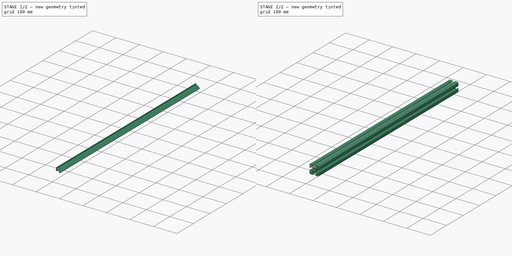
[diagram: build sequence overview — one tinted view per stage of 2, left to right]
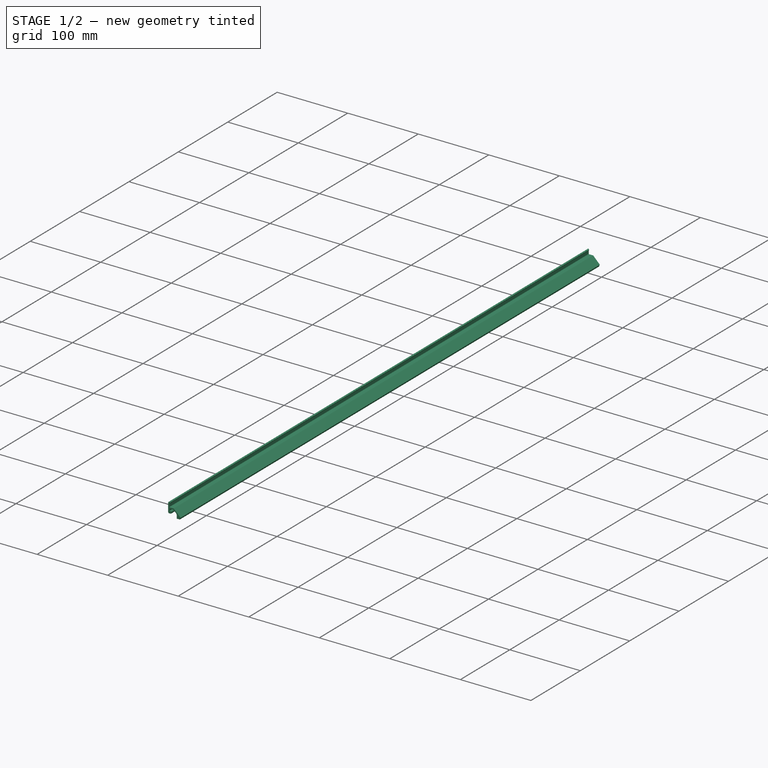
[diagram: stage 1 of 2 — iso view after this stage's code; geometry added in this stage tinted green]
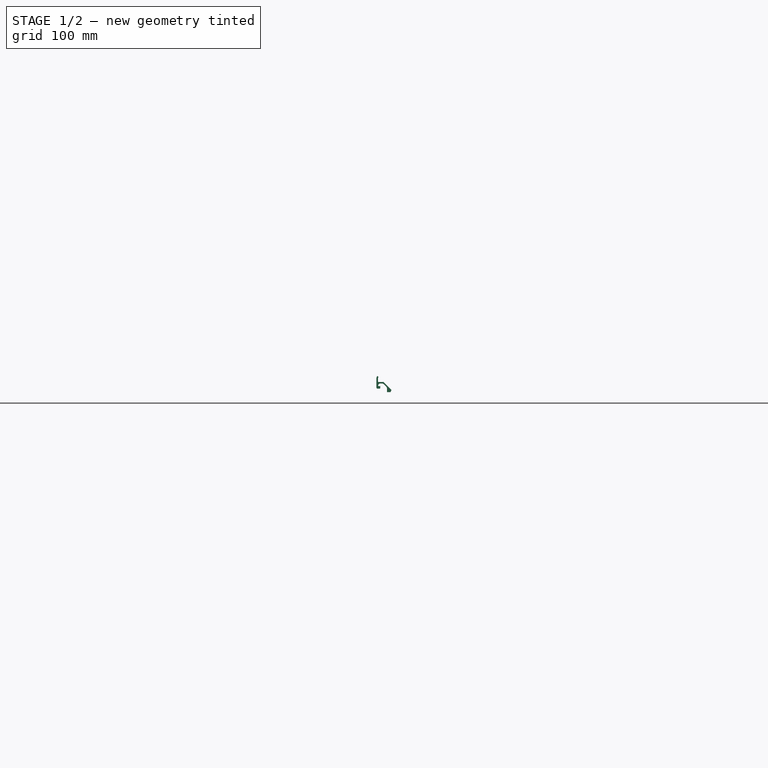
[diagram: stage 1 of 2 — front view after this stage's code; geometry added in this stage tinted green]
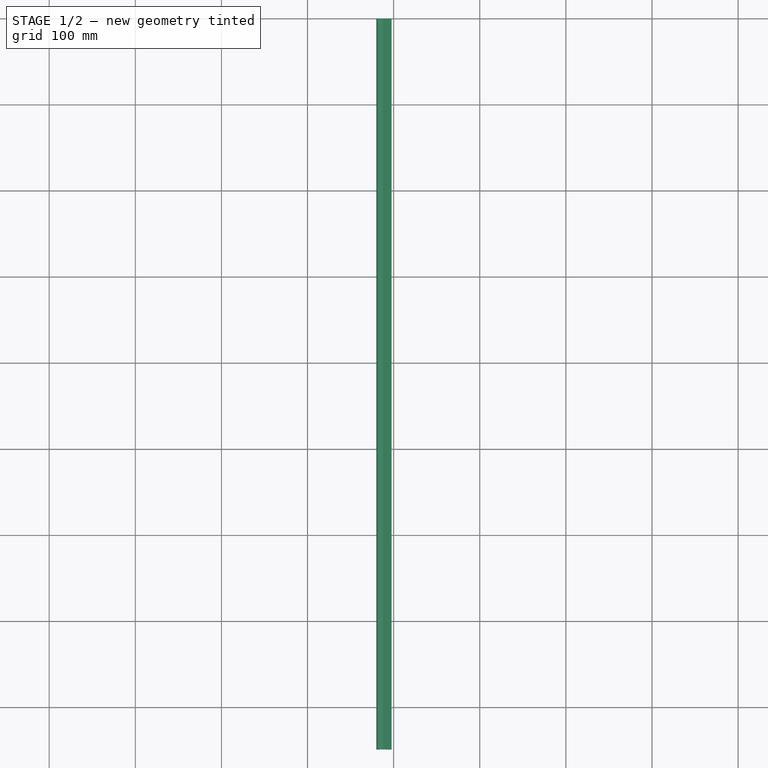
[diagram: stage 1 of 2 — top view after this stage's code; geometry added in this stage tinted green]
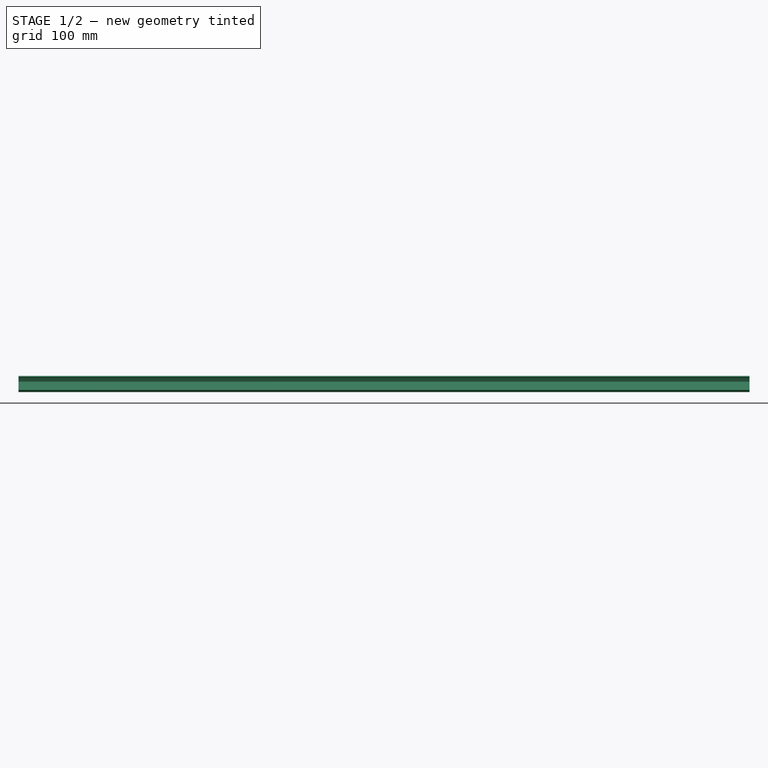
[diagram: stage 1 of 2 — right view after this stage's code; geometry added in this stage tinted green]
FCSTD DOCUMENT  (FreeCAD 0.21R33668 +7 (Git))
Label: 40-4040-849
License: All rights reserved
LicenseURL: http://en.wikipedia.org/wiki/All_rights_reserved
objects: Sketcher::SketchObject×1, PartDesign::Pad×1, PartDesign::Mirrored×1, PartDesign::PolarPattern×1, PartDesign::MultiTransform×1, PartDesign::Body×1, App::Part×1
note: 7 computed .brp shape members not serialized (recipe doc carries the construction recipe); baked Part::Feature solids carry a one-line shape summary decoded from their .brp

FEATURE [Sketcher::SketchObject] Sketch010  label="4040L Profile Sketch"
  FullyConstrained = true
  MapMode = 5
  Placement = pos=(0,0,0) rot=(1,0,0;1.5708rad)
  Support = -> [XZ_Plane001]
  sketch-geometry (26):
    g0: LineSegment StartX=-2.40416 StartY=2.40416 StartZ=0 EndX=-11.9464 EndY=11.9464 EndZ=0
    g1: LineSegment StartX=-20 StartY=16 StartZ=0 EndX=-20 EndY=5.5 EndZ=0
    g2: LineSegment StartX=-18.5 StartY=4 StartZ=0 EndX=-16.35 EndY=4 EndZ=0
    g3: LineSegment StartX=-15.55 StartY=4.8 StartZ=0 EndX=-15.55 EndY=6.5 EndZ=0
    g4: LineSegment StartX=-16.05 StartY=7 StartZ=0 EndX=-17.4008 EndY=7 EndZ=0
    g5: LineSegment StartX=-10.9216 StartY=8.82843 StartZ=0 EndX=-8.92157 EndY=6.82843 EndZ=0
    g6: LineSegment StartX=-7.75 StartY=4 StartZ=0 EndX=-7.75 EndY=0 EndZ=0
    g7: LineSegment StartX=-7.75 StartY=0 StartZ=0 EndX=-3.4 EndY=0 EndZ=0
    g8: ArcOfCircle CenterX=4e-16 CenterY=-6e-16 CenterZ=0 NormalX=0 NormalY=0 NormalZ=1 AngleXU=0 Radius=3.4 StartAngle=2.35619 EndAngle=3.14159
    g9: LineSegment StartX=-20 StartY=0 StartZ=0 EndX=-20 EndY=20 EndZ=0
    g10: LineSegment StartX=-20 StartY=20 StartZ=0 EndX=0 EndY=20 EndZ=0
    g11: ArcOfCircle CenterX=-16 CenterY=16 CenterZ=0 NormalX=0 NormalY=0 NormalZ=1 AngleXU=0 Radius=4 StartAngle=2.35619 EndAngle=3.14159
    g12: ArcOfCircle CenterX=-16.05 CenterY=6.5 CenterZ=0 NormalX=0 NormalY=0 NormalZ=1 AngleXU=0 Radius=0.5 StartAngle=0 EndAngle=1.5708
    g13: ArcOfCircle CenterX=-16.35 CenterY=4.8 CenterZ=0 NormalX=0 NormalY=0 NormalZ=1 AngleXU=0 Radius=0.8 StartAngle=4.71239 EndAngle=6.28319
    g14: ArcOfCircle CenterX=-13.75 CenterY=6 CenterZ=0 NormalX=0 NormalY=0 NormalZ=1 AngleXU=0 Radius=4 StartAngle=0.785398 EndAngle=1.5708
    g15: ArcOfCircle CenterX=-11.75 CenterY=4 CenterZ=0 NormalX=0 NormalY=0 NormalZ=1 AngleXU=0 Radius=4 StartAngle=2e-16 EndAngle=0.785398
    g16: LineSegment StartX=-15.5035 StartY=10 StartZ=0 EndX=-13.75 EndY=10 EndZ=0
    g17: ArcOfCircle CenterX=-17.4008 CenterY=7.6 CenterZ=0 NormalX=0 NormalY=0 NormalZ=1 AngleXU=0 Radius=0.6 StartAngle=3.08894 EndAngle=4.71239
    g18: ArcOfCircle CenterX=-15.5035 CenterY=7.5 CenterZ=0 NormalX=0 NormalY=0 NormalZ=1 AngleXU=0 Radius=2.5 StartAngle=1.5708 EndAngle=3.08894
    g19: ArcOfCircle CenterX=-16 CenterY=16 CenterZ=0 NormalX=0 NormalY=0 NormalZ=1 AngleXU=0 Radius=2.2 StartAngle=2.35619 EndAngle=3.14159
    g20: LineSegment StartX=-18.2 StartY=16 StartZ=0 EndX=-18.2 EndY=12.3 EndZ=0
    g21: LineSegment StartX=-17.7 StartY=11.8 StartZ=0 EndX=-12.3 EndY=11.8 EndZ=0
    g22: ArcOfCircle CenterX=-17.7 CenterY=12.3 CenterZ=0 NormalX=0 NormalY=0 NormalZ=1 AngleXU=0 Radius=0.5 StartAngle=3.14159 EndAngle=4.71239
    g23: ArcOfCircle CenterX=-12.3 CenterY=12.3 CenterZ=0 NormalX=0 NormalY=0 NormalZ=1 AngleXU=0 Radius=0.5 StartAngle=4.71239 EndAngle=5.49779
    g24: ArcOfCircle CenterX=-18.5 CenterY=5.5 CenterZ=0 NormalX=0 NormalY=0 NormalZ=1 AngleXU=0 Radius=1.5 StartAngle=3.14159 EndAngle=4.71239
    g25: LineSegment StartX=-17.5556 StartY=17.5556 StartZ=0 EndX=-18.8284 EndY=18.8284 EndZ=0
  constraints (69):
    c: Vertical(g1)
    c: Horizontal(g2)
    c: Vertical(g3)
    c: Vertical(g6)
    c: Coincident(g6,g7)
    c: Horizontal(g7)
    c: Perpendicular(g7,g8) = 4.71239
    c: Coincident(g8,g0)
    c: PointOnObject(g9,g-1)
    c: Vertical(g9)
    c: Coincident(g9,g10)
    c: PointOnObject(g10,g-2)
    c: Horizontal(g10)
    c: Equal(g10,g9)
    c: DistanceX(g10,g10) = 20
    c: PointOnObject(g1,g9)
    c: Angle(g-2,g0) = 0.785398
    c: Coincident(g11,g1)
    c: Coincident(g11,g25)
    c: Tangent(g11,g9)
    c: PointOnObject(g6,g-1)
    c: PointOnObject(g-1,g0)
    c: Tangent(g4,g12) = -1.5708
    c: Tangent(g3,g12) = -1.5708
    c: Tangent(g3,g13) = -1.5708
    c: Tangent(g2,g13) = -1.5708
    c: Horizontal(g4)
    c: Tangent(g5,g14) = 1.5708
    c: Tangent(g5,g15) = 1.5708
    c: Tangent(g15,g6) = 1.5708
    c: Horizontal(g16)
    c: Tangent(g14,g16) = 1.5708
    c: Tangent(g4,g17) = 1.5708
    c: Tangent(g16,g18) = 1.5708
    c: Tangent(g18,g17) = -1.5708
    c: Perpendicular(g8,g0)
    c: Diameter(g8) = 6.8
    c: Vertical(g20)
    c: Horizontal(g21)
    c: Tangent(g21,g22) = -1.5708
    c: Tangent(g20,g22) = -1.5708
    c: Tangent(g23,g21) = -1.5708
    c: Tangent(g2,g24) = -1.5708
    c: Tangent(g1,g24) = -1.5708
    c: Parallel(g5,g0)
    c: DistanceY(g-1,g2) = 4
    c: Perpendicular(g0,g23) = 4.71239
    c: Perpendicular(g25,g19) = 1.5708
    c: Tangent(g0,g25)
    c: Tangent(g19,g20) = -1.5708
    c: Radius(g11) = 4
    c: Coincident(g11,g19)
    c: Equal(g23,g22)
    c: DistanceX(g1,g6) = 12.25
    c: DistanceX(g1,g3) = 4.45
    c: Distance(g25) = 1.8
    c: DistanceY(g14,g21) = 1.8
    c: Radius(g24) = 1.5
    c: Radius(g13) = 0.8
    c: Radius(g12) = 0.5
    c: Radius(g18) = 2.5
    c: Radius(g17) = 0.6
    c: Radius(g15) = 4
    c: Equal(g14,g15)
    c: DistanceY(g6,g6) = 4
    c: DistanceX(g1,g17) = 2
    c: DistanceY(g2,g4) = 3
    c: DistanceY(g-1,g14) = 10
    c: Diameter(g22) = 1
FEATURE [PartDesign::Pad] Pad
  Direction = (0,-1,2e-16)
  Length = 849
  Length2 = 10
  Placement = pos=(0,0,0) rot=(1,0,0;1.5708rad)
  Profile = -> Sketch010
  ReferenceAxis = -> Sketch010 [N_Axis]
  Refine = true
  Type = 0
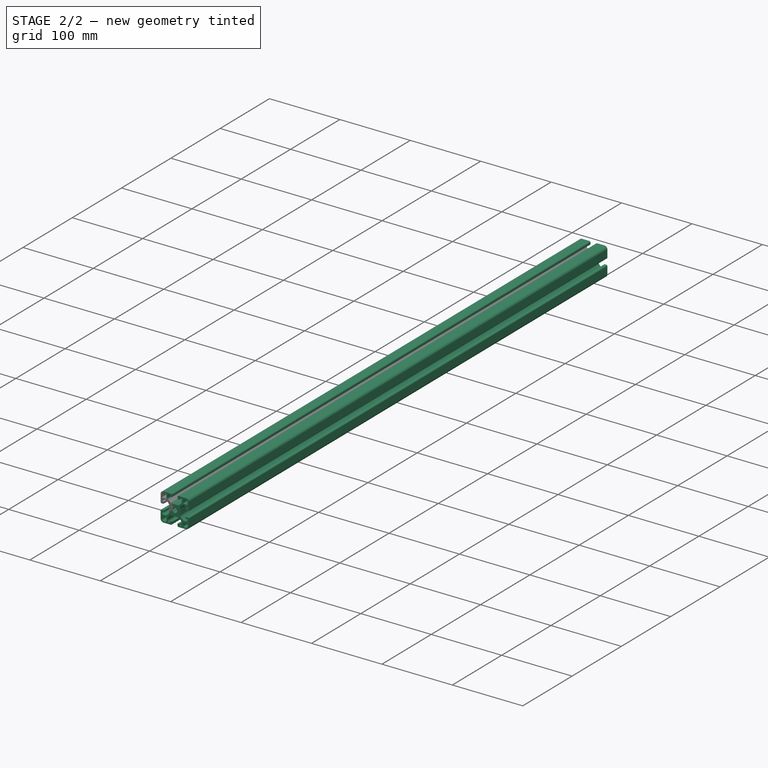
[diagram: stage 2 of 2 — iso view after this stage's code; geometry added in this stage tinted green]
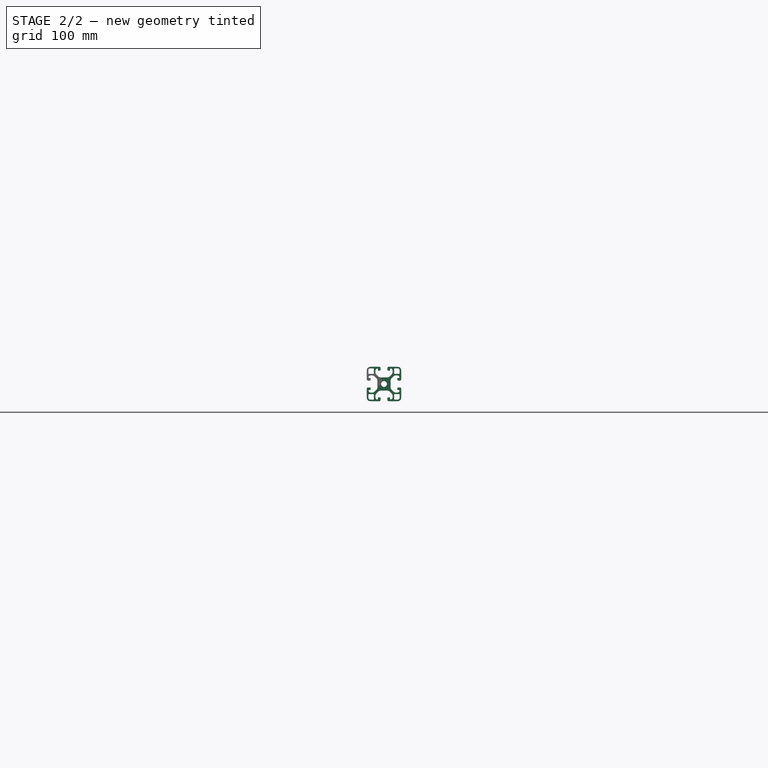
[diagram: stage 2 of 2 — front view after this stage's code; geometry added in this stage tinted green]
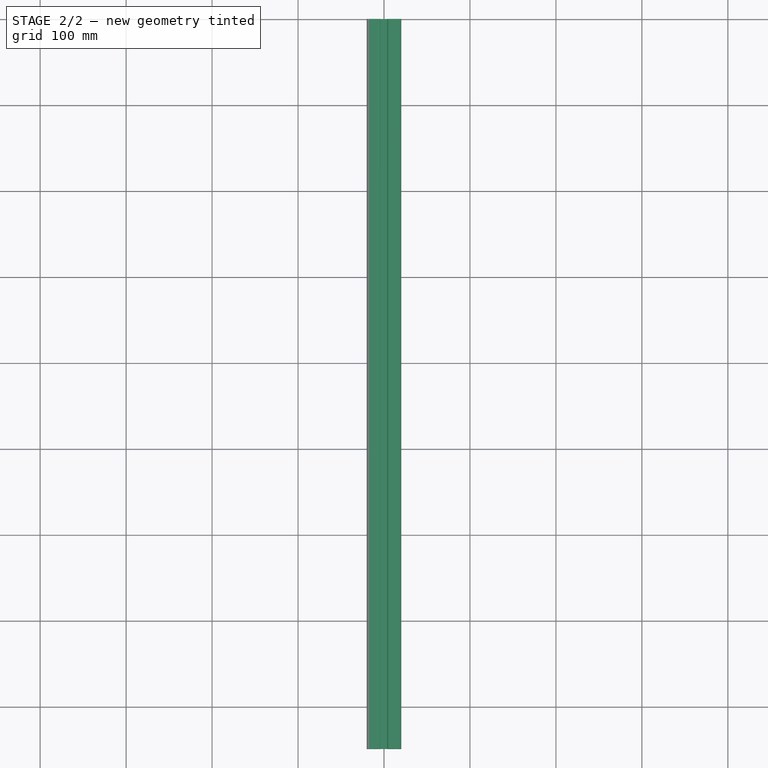
[diagram: stage 2 of 2 — top view after this stage's code; geometry added in this stage tinted green]
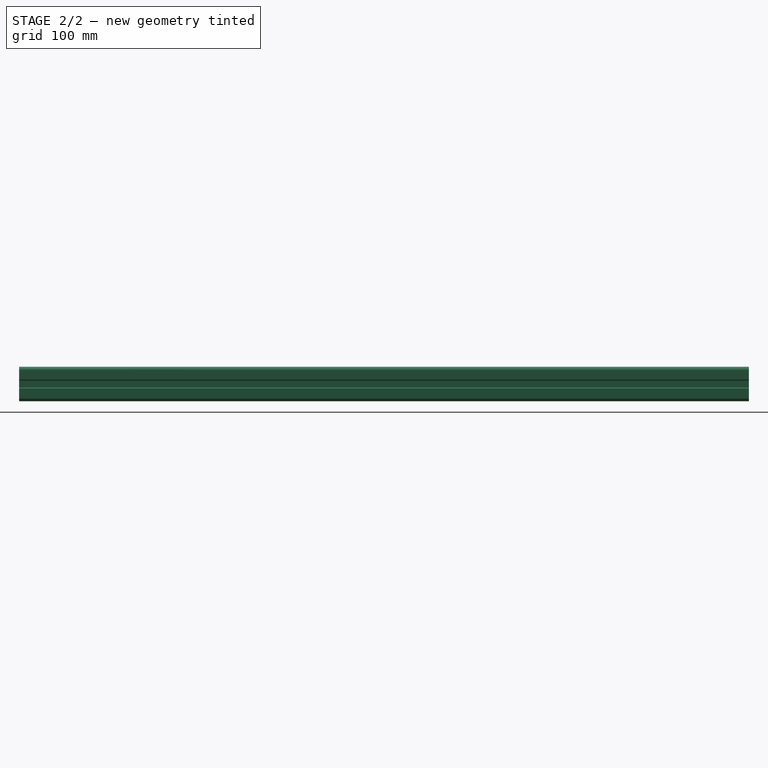
[diagram: stage 2 of 2 — right view after this stage's code; geometry added in this stage tinted green]
FEATURE [PartDesign::Mirrored] Mirrored
  MirrorPlane = -> Sketch010 [H_Axis]
  Placement = pos=(0,0,0) rot=(1,0,0;1.5708rad)
  Refine = true
FEATURE [PartDesign::PolarPattern] PolarPattern
  Angle = 360
  Axis = -> Sketch010 [N_Axis]
  Occurrences = 4
  Placement = pos=(0,0,0) rot=(1,0,0;1.5708rad)
  Refine = true
FEATURE [PartDesign::MultiTransform] MultiTransform
  BaseFeature = -> Pad
  Originals = -> [Pad]
  Placement = pos=(0,0,0) rot=(1,0,0;1.5708rad)
  Refine = true
  Transformations = -> [Mirrored,PolarPattern]
FEATURE [PartDesign::Body] Body
  Group = -> [Sketch010,Pad,MultiTransform,Mirrored,PolarPattern]
  Origin = -> Origin001
  Tip = -> MultiTransform
FEATURE [App::Part] Part  label="40-4040 849"
  Group = -> [Body]
  Origin = -> Origin
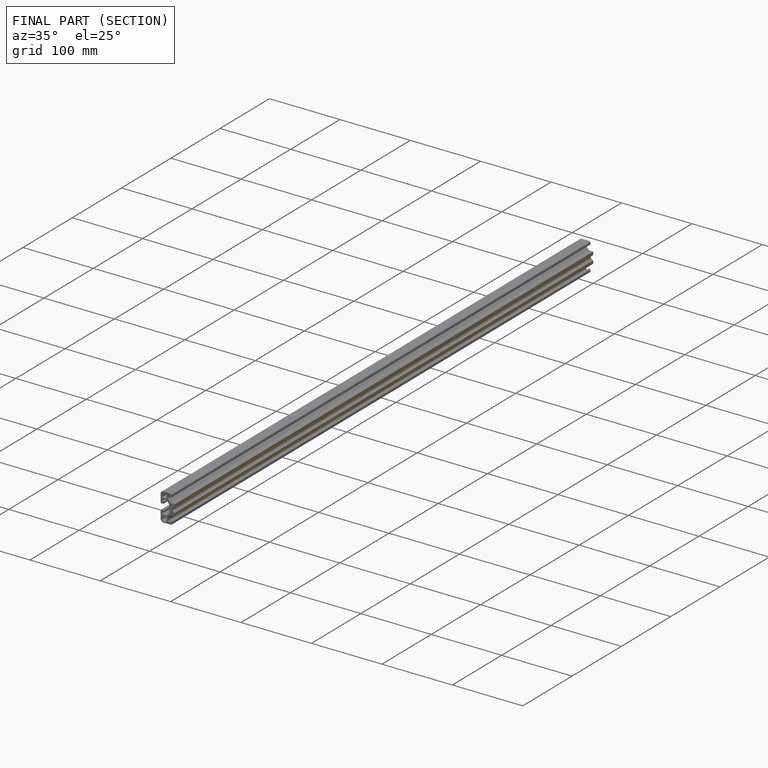
[diagram: finished part — half-section view (interior)]
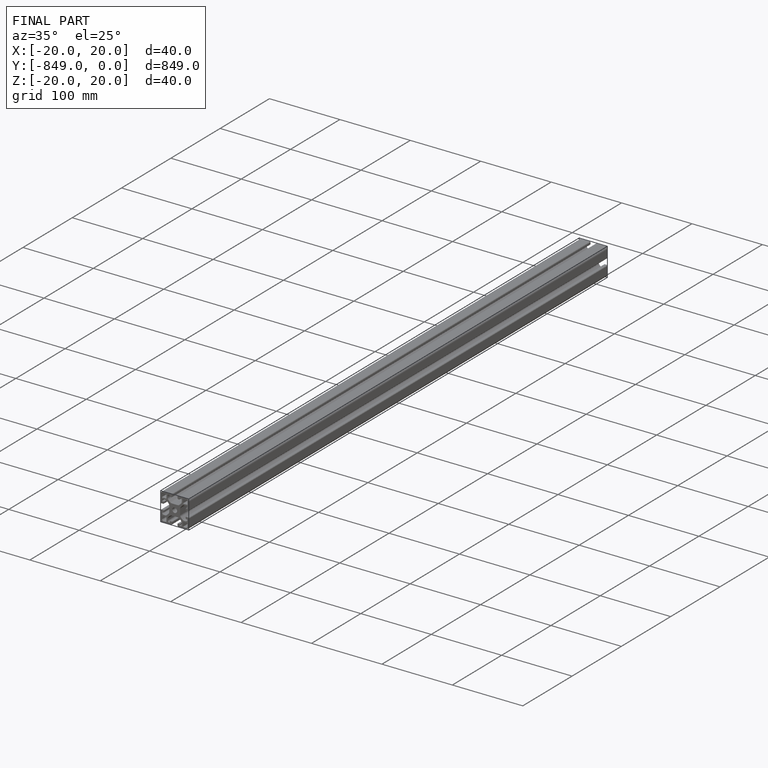
[diagram: finished part — iso view with bounding-box wireframe]
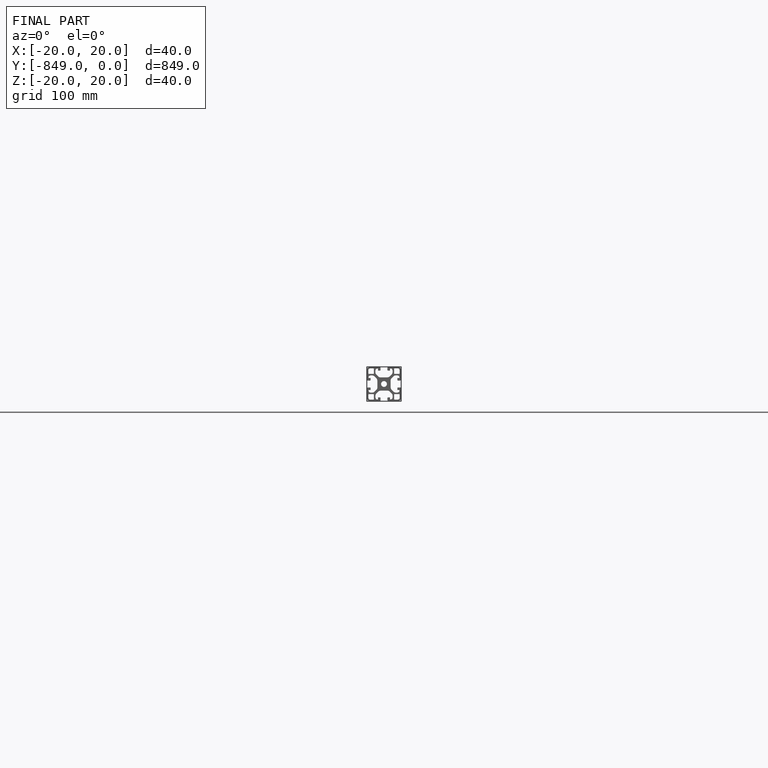
[diagram: finished part — front view with bounding-box wireframe]
